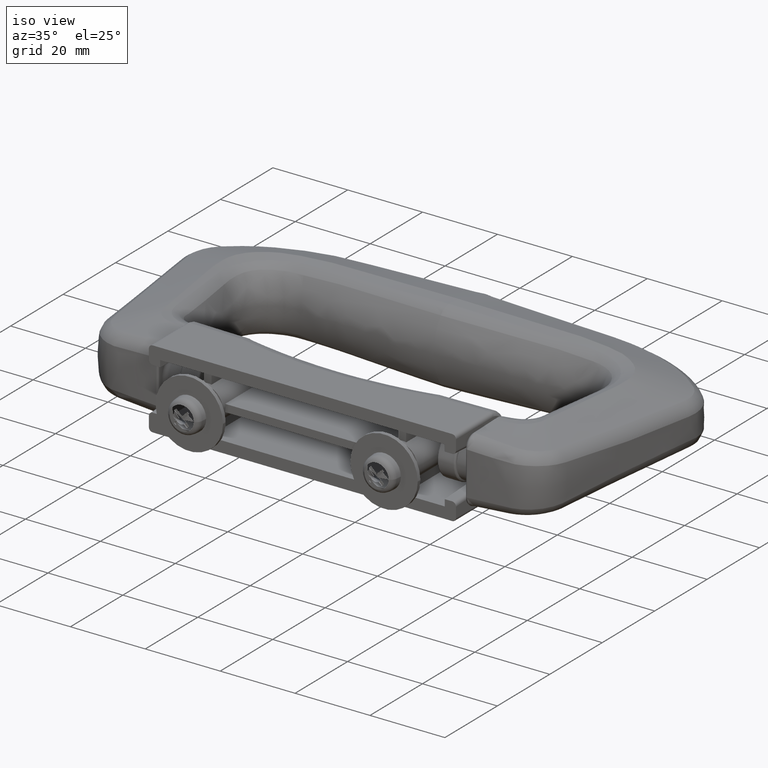
[diagram: clean part render]
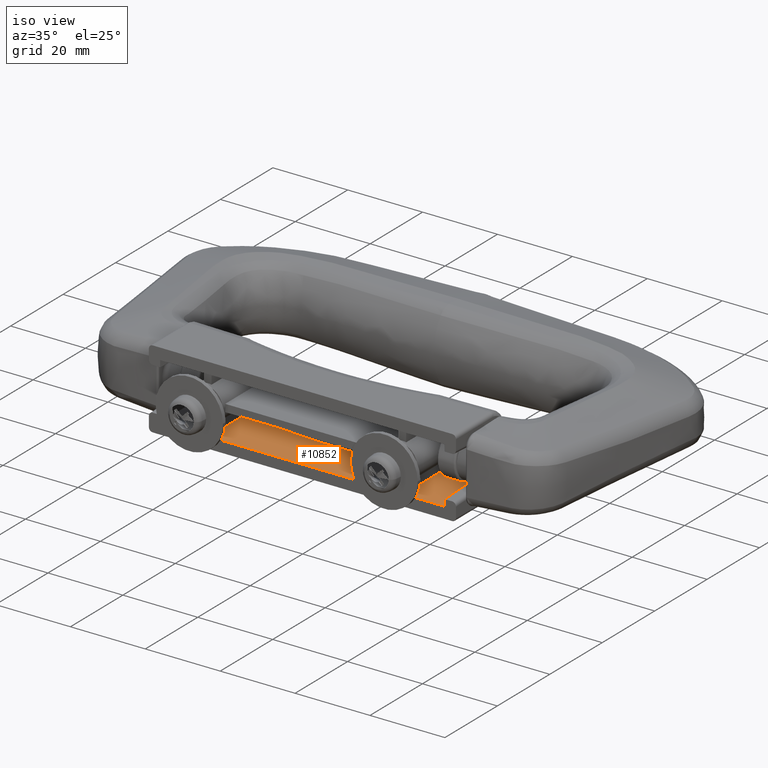
[diagram: same view with one face highlighted and labeled with its STEP entity id]
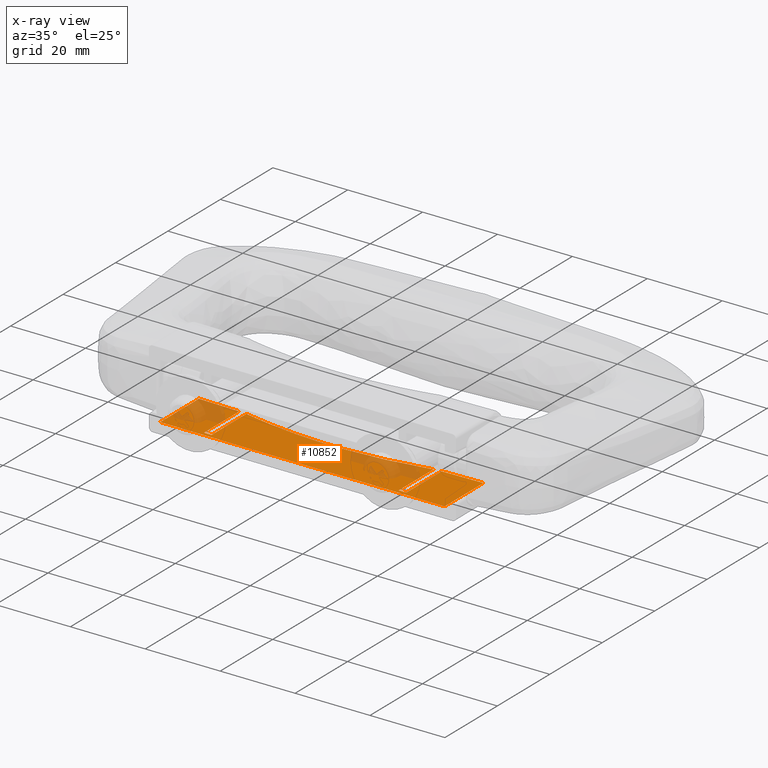
[diagram: x-ray of the same camera — body ghosted, the highlighted face saturated]
A machine part, iso view. The second image highlights one B-rep face of the part: STEP entity #10852.
The next image is the same camera in x-ray: the body ghosted, the highlighted face saturated — about 20% of this face is hidden behind the body in this view.
In plain terms, the highlighted planar face has unit normal (-0, -0, -1).
Its self-contained STEP definition (entity closure, byte-faithful):
#202 = PLANE ( 'NONE',  #14747 ) ;
#321 = CARTESIAN_POINT ( 'NONE',  ( 34.33344874485801100, 14.66102792401735600, -7.500000000000015100 ) ) ;
#370 = EDGE_CURVE ( 'NONE', #11474, #8814, #4866, .T. ) ;
#385 = CARTESIAN_POINT ( 'NONE',  ( 8.406093030914124900, 11.83907898130735600, -7.499999999999991100 ) ) ;
#426 = CARTESIAN_POINT ( 'NONE',  ( -27.00000000000000000, 17.00000000000000000, -7.499999999999982200 ) ) ;
#436 = CARTESIAN_POINT ( 'NONE',  ( -28.17237217227060600, 14.49983423269752000, -7.499999999999992900 ) ) ;
#562 = ORIENTED_EDGE ( 'NONE', *, *, #6212, .F. ) ;
#586 = DIRECTION ( 'NONE',  ( 0.0000000000000000000, 1.000000000000000000, -1.488553879240087800E-016 ) ) ;
#639 = LINE ( 'NONE', #7574, #6653 ) ;
#861 = CARTESIAN_POINT ( 'NONE',  ( 26.99999999999999600, 17.00000000000000000, -7.499999999999997300 ) ) ;
#1231 = VERTEX_POINT ( 'NONE', #15390 ) ;
#2515 = DIRECTION ( 'NONE',  ( 0.0000000000000000000, -1.000000000000000000, 0.0000000000000000000 ) ) ;
#2629 = ORIENTED_EDGE ( 'NONE', *, *, #9091, .T. ) ;
#2934 = VECTOR ( 'NONE', #9247, 1000.000000000000000 ) ;
#3144 = CARTESIAN_POINT ( 'NONE',  ( 16.75225673577127600, 12.70109003767773200, -7.500000000000005300 ) ) ;
#3218 = EDGE_CURVE ( 'NONE', #7510, #14511, #7096, .T. ) ;
#3333 = VERTEX_POINT ( 'NONE', #13729 ) ;
#3347 = B_SPLINE_CURVE_WITH_KNOTS ( 'NONE', 3,
 ( #3985, #321, #5163, #13478 ),
 .UNSPECIFIED., .F., .F.,
 ( 4, 4 ),
 ( 0.0000000000000000000, 0.01100387370041540700 ),
 .UNSPECIFIED. ) ;
#3457 = DIRECTION ( 'NONE',  ( 1.000000000000000000, 0.0000000000000000000, 0.0000000000000000000 ) ) ;
#3905 = LINE ( 'NONE', #4654, #6684 ) ;
#3985 = CARTESIAN_POINT ( 'NONE',  ( 38.00000000000004300, 14.76260950304918000, -7.500000000000012400 ) ) ;
#4114 = ORIENTED_EDGE ( 'NONE', *, *, #13744, .F. ) ;
#4142 = CARTESIAN_POINT ( 'NONE',  ( 2.105265906376626400, 11.54688310849471500, -7.500000000000010700 ) ) ;
#4147 = CARTESIAN_POINT ( 'NONE',  ( -27.00000000000001100, 14.47090922136437500, -7.499999999999961800 ) ) ;
#4256 = LINE ( 'NONE', #5076, #7064 ) ;
#4321 = VERTEX_POINT ( 'NONE', #15069 ) ;
#4331 = VERTEX_POINT ( 'NONE', #5550 ) ;
#4397 = EDGE_CURVE ( 'NONE', #8814, #4331, #4469, .T. ) ;
#4469 = LINE ( 'NONE', #7088, #10062 ) ;
#4654 = CARTESIAN_POINT ( 'NONE',  ( 24.99999999999999600, 1.000000000000000900, -7.499999999999997300 ) ) ;
#4829 = CARTESIAN_POINT ( 'NONE',  ( 24.99999999999999600, 14.27140359323872300, -7.499999999999997300 ) ) ;
#4866 = B_SPLINE_CURVE_WITH_KNOTS ( 'NONE', 3,
 ( #14839, #13590, #3144, #14695, #385, #7536, #4142, #6424, #10079, #13960, #8718, #14997, #13790, #15217 ),
 .UNSPECIFIED., .F., .F.,
 ( 4, 2, 2, 2, 2, 2, 4 ),
 ( 0.0007883977019697779100, 0.01336646427611300400, 0.01965549756318461800, 0.02594453085025623000, 0.03223356413732784300, 0.03852259742439945900, 0.05110066399854270400 ),
 .UNSPECIFIED. ) ;
#5037 = B_SPLINE_CURVE_WITH_KNOTS ( 'NONE', 3,
 ( #4147, #436, #5321, #13642, #6528, #14844, #7742 ),
 .UNSPECIFIED., .F., .F.,
 ( 4, 3, 4 ),
 ( 0.001227998320714142600, 0.004746185017818414300, 0.01223186866910361300 ),
 .UNSPECIFIED. ) ;
#5054 = DIRECTION ( 'NONE',  ( -4.830187196991697600E-018, -1.488553879240087500E-016, -1.000000000000000000 ) ) ;
#5076 = CARTESIAN_POINT ( 'NONE',  ( 41.00000000000000000, 1.772529884042202300E-022, -7.499999999999994700 ) ) ;
#5109 = CARTESIAN_POINT ( 'NONE',  ( 24.99999999999999600, 1.000000000000000900, -7.499999999999997300 ) ) ;
#5163 = CARTESIAN_POINT ( 'NONE',  ( 30.66684132522402400, 14.56137829713884800, -7.499999999999982200 ) ) ;
#5321 = CARTESIAN_POINT ( 'NONE',  ( -29.34472138636764200, 14.52969795824909700, -7.500000000000008000 ) ) ;
#5550 = CARTESIAN_POINT ( 'NONE',  ( -25.00000000000000000, 1.000000000000000900, -7.499999999999997300 ) ) ;
#5598 = EDGE_CURVE ( 'NONE', #7510, #9322, #5037, .T. ) ;
#6111 = LINE ( 'NONE', #861, #2934 ) ;
#6212 = EDGE_CURVE ( 'NONE', #6920, #10036, #3905, .T. ) ;
#6251 = VECTOR ( 'NONE', #2515, 1000.000000000000000 ) ;
#6269 = DIRECTION ( 'NONE',  ( -1.000000000000000000, -4.756472862325458800E-041, 4.830187196991698400E-018 ) ) ;
#6424 = CARTESIAN_POINT ( 'NONE',  ( -2.092518315365828200, 11.54664515469949200, -7.500000000000012400 ) ) ;
#6528 = CARTESIAN_POINT ( 'NONE',  ( -33.01143209625326600, 14.62529694559566300, -7.500000000000008000 ) ) ;
#6653 = VECTOR ( 'NONE', #13529, 1000.000000000000000 ) ;
#6684 = VECTOR ( 'NONE', #9447, 1000.000000000000000 ) ;
#6865 = VECTOR ( 'NONE', #586, 1000.000000000000000 ) ;
#6920 = VERTEX_POINT ( 'NONE', #5109 ) ;
#6961 = ORIENTED_EDGE ( 'NONE', *, *, #370, .T. ) ;
#7064 = VECTOR ( 'NONE', #6269, 1000.000000000000000 ) ;
#7088 = CARTESIAN_POINT ( 'NONE',  ( -25.00000000000000000, 17.00000000000000000, -7.499999999999982200 ) ) ;
#7096 = LINE ( 'NONE', #426, #13754 ) ;
#7231 = LINE ( 'NONE', #10129, #6865 ) ;
#7269 = CARTESIAN_POINT ( 'NONE',  ( -27.00000000000000000, 1.000000000000000900, -7.499999999999997300 ) ) ;
#7510 = VERTEX_POINT ( 'NONE', #8845 ) ;
#7536 = CARTESIAN_POINT ( 'NONE',  ( 4.205541888533074900, 11.60576172397465400, -7.499999999999991100 ) ) ;
#7574 = CARTESIAN_POINT ( 'NONE',  ( 38.00000000000000000, 15.55792074588736500, -7.499999999999999100 ) ) ;
#7577 = CARTESIAN_POINT ( 'NONE',  ( -38.00000000000000000, 1.772529884042202600E-022, -7.499999999999996400 ) ) ;
#7742 = CARTESIAN_POINT ( 'NONE',  ( -37.99999999999999300, 14.76260950304916400, -7.500000000000010700 ) ) ;
#7909 = EDGE_CURVE ( 'NONE', #1231, #13370, #4256, .T. ) ;
#8718 = CARTESIAN_POINT ( 'NONE',  ( -10.48295603727727800, 12.01155806533652300, -7.500000000000008900 ) ) ;
#8814 = VERTEX_POINT ( 'NONE', #12451 ) ;
#8837 = ORIENTED_EDGE ( 'NONE', *, *, #7909, .F. ) ;
#8845 = CARTESIAN_POINT ( 'NONE',  ( -27.00000000000001100, 14.47090922136437500, -7.499999999999961800 ) ) ;
#8890 = EDGE_CURVE ( 'NONE', #13370, #9322, #7231, .T. ) ;
#8955 = EDGE_LOOP ( 'NONE', ( #10618, #2629, #562, #15272, #6961, #13324, #4114, #10524, #11575, #11215, #8837, #9471 ) ) ;
#9091 = EDGE_CURVE ( 'NONE', #3333, #10036, #6111, .T. ) ;
#9247 = DIRECTION ( 'NONE',  ( 0.0000000000000000000, -1.000000000000000000, 0.0000000000000000000 ) ) ;
#9322 = VERTEX_POINT ( 'NONE', #11018 ) ;
#9447 = DIRECTION ( 'NONE',  ( 1.000000000000000000, 0.0000000000000000000, 0.0000000000000000000 ) ) ;
#9471 = ORIENTED_EDGE ( 'NONE', *, *, #9585, .T. ) ;
#9476 = DIRECTION ( 'NONE',  ( 0.0000000000000000000, -1.000000000000000000, 0.0000000000000000000 ) ) ;
#9505 = EDGE_CURVE ( 'NONE', #4321, #3333, #3347, .T. ) ;
#9585 = EDGE_CURVE ( 'NONE', #1231, #4321, #639, .T. ) ;
#9611 = VECTOR ( 'NONE', #3457, 1000.000000000000000 ) ;
#10036 = VERTEX_POINT ( 'NONE', #11424 ) ;
#10062 = VECTOR ( 'NONE', #9476, 1000.000000000000000 ) ;
#10074 = DIRECTION ( 'NONE',  ( 0.0000000000000000000, -1.000000000000000000, 0.0000000000000000000 ) ) ;
#10079 = CARTESIAN_POINT ( 'NONE',  ( -4.190476999014762800, 11.60526150819056700, -7.499999999999960000 ) ) ;
#10129 = CARTESIAN_POINT ( 'NONE',  ( -38.00000000000000000, 6.799999999999998000, -7.499999999999997300 ) ) ;
#10524 = ORIENTED_EDGE ( 'NONE', *, *, #3218, .F. ) ;
#10598 = CARTESIAN_POINT ( 'NONE',  ( -27.00000000000000000, 1.000000000000000900, -7.499999999999982200 ) ) ;
#10618 = ORIENTED_EDGE ( 'NONE', *, *, #9505, .T. ) ;
#10852 = ADVANCED_FACE ( 'NONE', ( #13332 ), #202, .F. ) ;
#10873 = CARTESIAN_POINT ( 'NONE',  ( 24.99999999999999600, 17.00000000000000000, -7.499999999999997300 ) ) ;
#11018 = CARTESIAN_POINT ( 'NONE',  ( -37.99999999999999300, 14.76260950304916400, -7.500000000000010700 ) ) ;
#11215 = ORIENTED_EDGE ( 'NONE', *, *, #8890, .F. ) ;
#11424 = CARTESIAN_POINT ( 'NONE',  ( 26.99999999999999600, 1.000000000000000900, -7.499999999999997300 ) ) ;
#11474 = VERTEX_POINT ( 'NONE', #4829 ) ;
#11575 = ORIENTED_EDGE ( 'NONE', *, *, #5598, .T. ) ;
#12028 = LINE ( 'NONE', #10598, #9611 ) ;
#12186 = CARTESIAN_POINT ( 'NONE',  ( -25.52306524140899300, 15.55792074588736500, -7.499999999999999100 ) ) ;
#12451 = CARTESIAN_POINT ( 'NONE',  ( -24.99999999997939800, 14.27140359323334800, -7.499999999999989300 ) ) ;
#13061 = EDGE_CURVE ( 'NONE', #11474, #6920, #14629, .T. ) ;
#13324 = ORIENTED_EDGE ( 'NONE', *, *, #4397, .T. ) ;
#13332 = FACE_OUTER_BOUND ( 'NONE', #8955, .T. ) ;
#13368 = DIRECTION ( 'NONE',  ( -0.006669114532560827300, -0.9999777612083938800, 1.488842906316877000E-016 ) ) ;
#13370 = VERTEX_POINT ( 'NONE', #7577 ) ;
#13478 = CARTESIAN_POINT ( 'NONE',  ( 26.99999999999999600, 14.47090922136372400, -7.499999999999997300 ) ) ;
#13529 = DIRECTION ( 'NONE',  ( 0.0000000000000000000, 1.000000000000000000, -1.488553879240087800E-016 ) ) ;
#13590 = CARTESIAN_POINT ( 'NONE',  ( 20.89075763919698000, 13.38096432164967500, -7.499999999999987600 ) ) ;
#13642 = CARTESIAN_POINT ( 'NONE',  ( -30.51705194442062600, 14.56026312224830300, -7.500000000000008000 ) ) ;
#13729 = CARTESIAN_POINT ( 'NONE',  ( 26.99999999999999600, 14.47090922136372400, -7.499999999999997300 ) ) ;
#13744 = EDGE_CURVE ( 'NONE', #14511, #4331, #12028, .T. ) ;
#13754 = VECTOR ( 'NONE', #10074, 1000.000000000000000 ) ;
#13790 = CARTESIAN_POINT ( 'NONE',  ( -20.89012507813041400, 13.38082725083060400, -7.500000000000008000 ) ) ;
#13960 = CARTESIAN_POINT ( 'NONE',  ( -8.384565895063621700, 11.83754963712015100, -7.499999999999960900 ) ) ;
#14511 = VERTEX_POINT ( 'NONE', #7269 ) ;
#14629 = LINE ( 'NONE', #10873, #6251 ) ;
#14695 = CARTESIAN_POINT ( 'NONE',  ( 10.49840562061441700, 12.01304480809782800, -7.500000000000003600 ) ) ;
#14747 = AXIS2_PLACEMENT_3D ( 'NONE', #12186, #5054, #13368 ) ;
#14839 = CARTESIAN_POINT ( 'NONE',  ( 24.99999999999999600, 14.27140359323872300, -7.499999999999997300 ) ) ;
#14844 = CARTESIAN_POINT ( 'NONE',  ( -35.50572927893242800, 14.69350588475838600, -7.499999999999984900 ) ) ;
#14997 = CARTESIAN_POINT ( 'NONE',  ( -16.74780479769439600, 12.70017601215697800, -7.500000000000008000 ) ) ;
#15069 = CARTESIAN_POINT ( 'NONE',  ( 38.00000000000004300, 14.76260950304918000, -7.500000000000012400 ) ) ;
#15217 = CARTESIAN_POINT ( 'NONE',  ( -24.99999999997939800, 14.27140359323334800, -7.499999999999989300 ) ) ;
#15272 = ORIENTED_EDGE ( 'NONE', *, *, #13061, .F. ) ;
#15390 = CARTESIAN_POINT ( 'NONE',  ( 38.00000000000000000, 1.772529884042202800E-022, -7.499999999999997300 ) ) ;